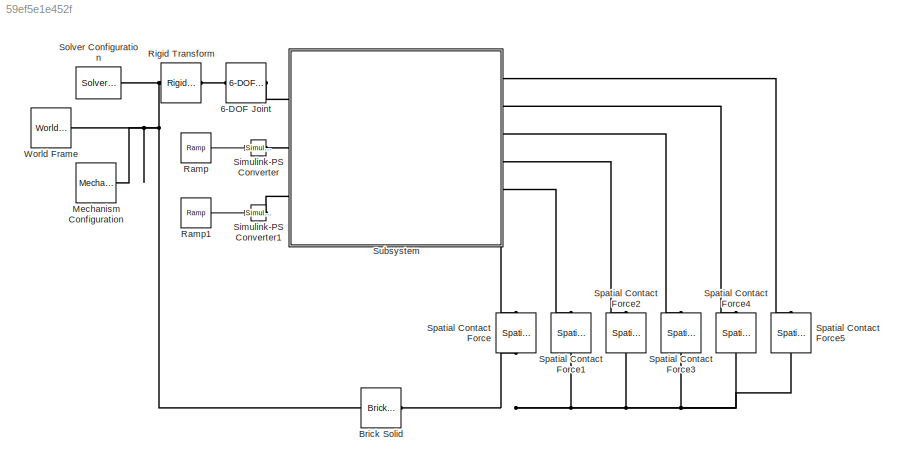
MODEL slx_59ef5e1e452f
KIND model
CONFIG AbsTol = auto
CONFIG EnableMultiTasking = off
CONFIG FixedStep = 0.001
CONFIG MaxStep = auto
CONFIG MinStep = auto
CONFIG RelTol = 1e-3
CONFIG SampleTimeConstraint = Unconstrained
CONFIG SolverName = FixedStepAuto
CONFIG StartTime = 0.0
CONFIG StopTime = 10
BLOCK [Reference] 6-DOF Joint  REF=sm_lib/Joints/6-DOF Joint
  Ports = [0, 0, 0, 0, 0, 1, 1]
  SourceBlock = sm_lib/Joints/6-DOF Joint
  SourceProductBaseCode = MS
  SourceType = 6-DOF Joint
BLOCK [Reference] Brick Solid  REF=sm_lib/Body Elements/Brick Solid
  NameLocation = top
  Ports = [0, 0, 0, 0, 0, 1, 1]
  SourceBlock = sm_lib/Body Elements/Brick Solid
  SourceProductBaseCode = MS
  SourceType = Brick Solid
BLOCK [Reference] Mechanism Configuration  REF=sm_lib/Utilities/Mechanism
Configuration
  Ports = [0, 0, 0, 0, 0, 0, 1]
  SourceBlock = sm_lib/Utilities/Mechanism\nConfiguration
  SourceProductBaseCode = MS
  SourceType = Mechanism\nConfiguration
BLOCK [Reference] Ramp  REF=simulink/Sources/Ramp
  Ports = [0, 1]
  SourceBlock = simulink/Sources/Ramp
  SourceProductBaseCode = SL
  SourceType = Ramp
BLOCK [Reference] Ramp1  REF=simulink/Sources/Ramp
  Ports = [0, 1]
  SourceBlock = simulink/Sources/Ramp
  SourceProductBaseCode = SL
  SourceType = Ramp
BLOCK [Reference] Rigid Transform  REF=sm_lib/Frames and
Transforms/Rigid
Transform
  NameLocation = top
  Ports = [0, 0, 0, 0, 0, 1, 1]
  SourceBlock = sm_lib/Frames and\nTransforms/Rigid\nTransform
  SourceProductBaseCode = MS
  SourceType = Rigid\nTransform
BLOCK [Reference] Simulink-PS Converter  REF=nesl_utility/Simulink-PS
Converter
  Ports = [1, 0, 0, 0, 0, 0, 1]
  SourceBlock = nesl_utility/Simulink-PS\nConverter
  SourceProductBaseCode = SS
  SourceType = Simulink-PS\nConverter
BLOCK [Reference] Simulink-PS Converter1  REF=nesl_utility/Simulink-PS
Converter
  Ports = [1, 0, 0, 0, 0, 0, 1]
  SourceBlock = nesl_utility/Simulink-PS\nConverter
  SourceProductBaseCode = SS
  SourceType = Simulink-PS\nConverter
BLOCK [Reference] Solver Configuration  REF=nesl_utility/Solver
Configuration
  Ports = [0, 0, 0, 0, 0, 0, 1]
  SourceBlock = nesl_utility/Solver\nConfiguration
  SourceProductBaseCode = SS
  SourceType = Solver\nConfiguration
BLOCK [Reference] Spatial Contact Force  REF=sm_lib/Forces and
Torques/Spatial
Contact Force
  NameLocation = right
  Ports = [0, 0, 0, 0, 0, 1, 1]
  SourceBlock = sm_lib/Forces and\nTorques/Spatial\nContact Force
  SourceProductBaseCode = MS
  SourceType = Spatial\nContact Force
BLOCK [Reference] Spatial Contact Force1  REF=sm_lib/Forces and
Torques/Spatial
Contact Force
  NameLocation = right
  Ports = [0, 0, 0, 0, 0, 1, 1]
  SourceBlock = sm_lib/Forces and\nTorques/Spatial\nContact Force
  SourceProductBaseCode = MS
  SourceType = Spatial\nContact Force
BLOCK [Reference] Spatial Contact Force2  REF=sm_lib/Forces and
Torques/Spatial
Contact Force
  NameLocation = right
  Ports = [0, 0, 0, 0, 0, 1, 1]
  SourceBlock = sm_lib/Forces and\nTorques/Spatial\nContact Force
  SourceProductBaseCode = MS
  SourceType = Spatial\nContact Force
BLOCK [Reference] Spatial Contact Force3  REF=sm_lib/Forces and
Torques/Spatial
Contact Force
  NameLocation = right
  Ports = [0, 0, 0, 0, 0, 1, 1]
  SourceBlock = sm_lib/Forces and\nTorques/Spatial\nContact Force
  SourceProductBaseCode = MS
  SourceType = Spatial\nContact Force
BLOCK [Reference] Spatial Contact Force4  REF=sm_lib/Forces and
Torques/Spatial
Contact Force
  NameLocation = right
  Ports = [0, 0, 0, 0, 0, 1, 1]
  SourceBlock = sm_lib/Forces and\nTorques/Spatial\nContact Force
  SourceProductBaseCode = MS
  SourceType = Spatial\nContact Force
BLOCK [Reference] Spatial Contact Force5  REF=sm_lib/Forces and
Torques/Spatial
Contact Force
  NameLocation = right
  Ports = [0, 0, 0, 0, 0, 1, 1]
  SourceBlock = sm_lib/Forces and\nTorques/Spatial\nContact Force
  SourceProductBaseCode = MS
  SourceType = Spatial\nContact Force
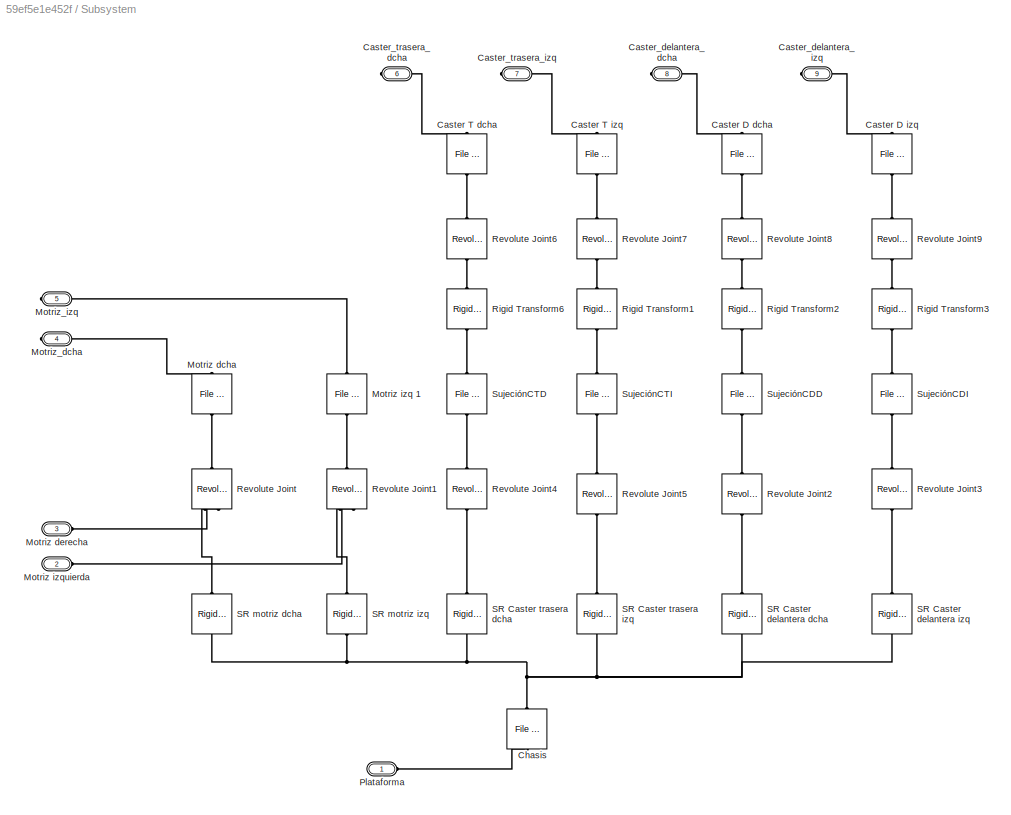
BLOCK [SubSystem] Subsystem
  Ports = [0, 0, 0, 0, 0, 3, 6]
  RequestExecContextInheritance = off
BLOCK [Reference] Subsystem/Caster D dcha  REF=sm_lib/Body Elements/File Solid
  NameLocation = right
  Ports = [0, 0, 0, 0, 0, 1, 1]
  SourceBlock = sm_lib/Body Elements/File Solid
  SourceProductBaseCode = MS
  SourceType = File Solid
BLOCK [Reference] Subsystem/Caster D izq  REF=sm_lib/Body Elements/File Solid
  NameLocation = right
  Ports = [0, 0, 0, 0, 0, 1, 1]
  SourceBlock = sm_lib/Body Elements/File Solid
  SourceProductBaseCode = MS
  SourceType = File Solid
BLOCK [Reference] Subsystem/Caster T dcha  REF=sm_lib/Body Elements/File Solid
  NameLocation = right
  Ports = [0, 0, 0, 0, 0, 1, 1]
  SourceBlock = sm_lib/Body Elements/File Solid
  SourceProductBaseCode = MS
  SourceType = File Solid
BLOCK [Reference] Subsystem/Caster T izq   REF=sm_lib/Body Elements/File Solid
  NameLocation = right
  Ports = [0, 0, 0, 0, 0, 1, 1]
  SourceBlock = sm_lib/Body Elements/File Solid
  SourceProductBaseCode = MS
  SourceType = File Solid
BLOCK [PMIOPort] Subsystem/Caster_delantera_dcha
  Port = 8
  Side = Right
BLOCK [PMIOPort] Subsystem/Caster_delantera_izq
  Port = 9
  Side = Right
BLOCK [PMIOPort] Subsystem/Caster_trasera_dcha
  Port = 6
  Side = Right
BLOCK [PMIOPort] Subsystem/Caster_trasera_izq
  Port = 7
  Side = Right
BLOCK [Reference] Subsystem/Chasis  REF=sm_lib/Body Elements/File Solid
  NameLocation = right
  Ports = [0, 0, 0, 0, 0, 1, 1]
  SourceBlock = sm_lib/Body Elements/File Solid
  SourceProductBaseCode = MS
  SourceType = File Solid
BLOCK [Reference] Subsystem/Motriz dcha   REF=sm_lib/Body Elements/File Solid
  NameLocation = left
  Ports = [0, 0, 0, 0, 0, 1, 1]
  SourceBlock = sm_lib/Body Elements/File Solid
  SourceProductBaseCode = MS
  SourceType = File Solid
BLOCK [PMIOPort] Subsystem/Motriz derecha
  Port = 3
  Side = Left
BLOCK [Reference] Subsystem/Motriz izq 1  REF=sm_lib/Body Elements/File Solid
  NameLocation = left
  Ports = [0, 0, 0, 0, 0, 1, 1]
  SourceBlock = sm_lib/Body Elements/File Solid
  SourceProductBaseCode = MS
  SourceType = File Solid
BLOCK [PMIOPort] Subsystem/Motriz izquierda
  Port = 2
  Side = Left
BLOCK [PMIOPort] Subsystem/Motriz_dcha
  Port = 4
  Side = Right
BLOCK [PMIOPort] Subsystem/Motriz_izq
  Port = 5
  Side = Right
BLOCK [PMIOPort] Subsystem/Plataforma
  Side = Left
BLOCK [Reference] Subsystem/Revolute Joint  REF=sm_lib/Joints/Revolute Joint
  NameLocation = right
  Ports = [0, 0, 0, 0, 0, 2, 1]
  SourceBlock = sm_lib/Joints/Revolute Joint
  SourceProductBaseCode = MS
  SourceType = Revolute Joint
BLOCK [Reference] Subsystem/Revolute Joint1  REF=sm_lib/Joints/Revolute Joint
  NameLocation = right
  Ports = [0, 0, 0, 0, 0, 2, 1]
  SourceBlock = sm_lib/Joints/Revolute Joint
  SourceProductBaseCode = MS
  SourceType = Revolute Joint
BLOCK [Reference] Subsystem/Revolute Joint2  REF=sm_lib/Joints/Revolute Joint
  NameLocation = right
  Ports = [0, 0, 0, 0, 0, 1, 1]
  SourceBlock = sm_lib/Joints/Revolute Joint
  SourceProductBaseCode = MS
  SourceType = Revolute Joint
BLOCK [Reference] Subsystem/Revolute Joint3  REF=sm_lib/Joints/Revolute Joint
  NameLocation = right
  Ports = [0, 0, 0, 0, 0, 1, 1]
  SourceBlock = sm_lib/Joints/Revolute Joint
  SourceProductBaseCode = MS
  SourceType = Revolute Joint
BLOCK [Reference] Subsystem/Revolute Joint4  REF=sm_lib/Joints/Revolute Joint
  NameLocation = right
  Ports = [0, 0, 0, 0, 0, 1, 1]
  SourceBlock = sm_lib/Joints/Revolute Joint
  SourceProductBaseCode = MS
  SourceType = Revolute Joint
BLOCK [Reference] Subsystem/Revolute Joint5  REF=sm_lib/Joints/Revolute Joint
  NameLocation = right
  Ports = [0, 0, 0, 0, 0, 1, 1]
  SourceBlock = sm_lib/Joints/Revolute Joint
  SourceProductBaseCode = MS
  SourceType = Revolute Joint
BLOCK [Reference] Subsystem/Revolute Joint6  REF=sm_lib/Joints/Revolute Joint
  NameLocation = right
  Ports = [0, 0, 0, 0, 0, 1, 1]
  SourceBlock = sm_lib/Joints/Revolute Joint
  SourceProductBaseCode = MS
  SourceType = Revolute Joint
BLOCK [Reference] Subsystem/Revolute Joint7  REF=sm_lib/Joints/Revolute Joint
  NameLocation = right
  Ports = [0, 0, 0, 0, 0, 1, 1]
  SourceBlock = sm_lib/Joints/Revolute Joint
  SourceProductBaseCode = MS
  SourceType = Revolute Joint
BLOCK [Reference] Subsystem/Revolute Joint8  REF=sm_lib/Joints/Revolute Joint
  NameLocation = right
  Ports = [0, 0, 0, 0, 0, 1, 1]
  SourceBlock = sm_lib/Joints/Revolute Joint
  SourceProductBaseCode = MS
  SourceType = Revolute Joint
BLOCK [Reference] Subsystem/Revolute Joint9  REF=sm_lib/Joints/Revolute Joint
  NameLocation = right
  Ports = [0, 0, 0, 0, 0, 1, 1]
  SourceBlock = sm_lib/Joints/Revolute Joint
  SourceProductBaseCode = MS
  SourceType = Revolute Joint
BLOCK [Reference] Subsystem/Rigid Transform1  REF=sm_lib/Frames and
Transforms/Rigid
Transform
  NameLocation = right
  Ports = [0, 0, 0, 0, 0, 1, 1]
  SourceBlock = sm_lib/Frames and\nTransforms/Rigid\nTransform
  SourceProductBaseCode = MS
  SourceType = Rigid\nTransform
BLOCK [Reference] Subsystem/Rigid Transform2  REF=sm_lib/Frames and
Transforms/Rigid
Transform
  NameLocation = right
  Ports = [0, 0, 0, 0, 0, 1, 1]
  SourceBlock = sm_lib/Frames and\nTransforms/Rigid\nTransform
  SourceProductBaseCode = MS
  SourceType = Rigid\nTransform
BLOCK [Reference] Subsystem/Rigid Transform3  REF=sm_lib/Frames and
Transforms/Rigid
Transform
  NameLocation = right
  Ports = [0, 0, 0, 0, 0, 1, 1]
  SourceBlock = sm_lib/Frames and\nTransforms/Rigid\nTransform
  SourceProductBaseCode = MS
  SourceType = Rigid\nTransform
BLOCK [Reference] Subsystem/Rigid Transform6  REF=sm_lib/Frames and
Transforms/Rigid
Transform
  NameLocation = right
  Ports = [0, 0, 0, 0, 0, 1, 1]
  SourceBlock = sm_lib/Frames and\nTransforms/Rigid\nTransform
  SourceProductBaseCode = MS
  SourceType = Rigid\nTransform
BLOCK [Reference] Subsystem/SR Caster delantera dcha  REF=sm_lib/Frames and
Transforms/Rigid
Transform
  NameLocation = right
  Ports = [0, 0, 0, 0, 0, 1, 1]
  SourceBlock = sm_lib/Frames and\nTransforms/Rigid\nTransform
  SourceProductBaseCode = MS
  SourceType = Rigid\nTransform
BLOCK [Reference] Subsystem/SR Caster delantera izq  REF=sm_lib/Frames and
Transforms/Rigid
Transform
  NameLocation = right
  Ports = [0, 0, 0, 0, 0, 1, 1]
  SourceBlock = sm_lib/Frames and\nTransforms/Rigid\nTransform
  SourceProductBaseCode = MS
  SourceType = Rigid\nTransform
BLOCK [Reference] Subsystem/SR Caster trasera dcha  REF=sm_lib/Frames and
Transforms/Rigid
Transform
  NameLocation = right
  Ports = [0, 0, 0, 0, 0, 1, 1]
  SourceBlock = sm_lib/Frames and\nTransforms/Rigid\nTransform
  SourceProductBaseCode = MS
  SourceType = Rigid\nTransform
BLOCK [Reference] Subsystem/SR Caster trasera izq  REF=sm_lib/Frames and
Transforms/Rigid
Transform
  NameLocation = right
  Ports = [0, 0, 0, 0, 0, 1, 1]
  SourceBlock = sm_lib/Frames and\nTransforms/Rigid\nTransform
  SourceProductBaseCode = MS
  SourceType = Rigid\nTransform
BLOCK [Reference] Subsystem/SR motriz dcha  REF=sm_lib/Frames and
Transforms/Rigid
Transform
  NameLocation = right
  Ports = [0, 0, 0, 0, 0, 1, 1]
  SourceBlock = sm_lib/Frames and\nTransforms/Rigid\nTransform
  SourceProductBaseCode = MS
  SourceType = Rigid\nTransform
BLOCK [Reference] Subsystem/SR motriz izq  REF=sm_lib/Frames and
Transforms/Rigid
Transform
  NameLocation = right
  Ports = [0, 0, 0, 0, 0, 1, 1]
  SourceBlock = sm_lib/Frames and\nTransforms/Rigid\nTransform
  SourceProductBaseCode = MS
  SourceType = Rigid\nTransform
BLOCK [Reference] Subsystem/SujeciónCDD  REF=sm_lib/Body Elements/File Solid
  NameLocation = left
  Ports = [0, 0, 0, 0, 0, 1, 1]
  SourceBlock = sm_lib/Body Elements/File Solid
  SourceProductBaseCode = MS
  SourceType = File Solid
BLOCK [Reference] Subsystem/SujeciónCDI  REF=sm_lib/Body Elements/File Solid
  NameLocation = left
  Ports = [0, 0, 0, 0, 0, 1, 1]
  SourceBlock = sm_lib/Body Elements/File Solid
  SourceProductBaseCode = MS
  SourceType = File Solid
BLOCK [Reference] Subsystem/SujeciónCTD  REF=sm_lib/Body Elements/File Solid
  NameLocation = left
  Ports = [0, 0, 0, 0, 0, 1, 1]
  SourceBlock = sm_lib/Body Elements/File Solid
  SourceProductBaseCode = MS
  SourceType = File Solid
BLOCK [Reference] Subsystem/SujeciónCTI  REF=sm_lib/Body Elements/File Solid
  NameLocation = left
  Ports = [0, 0, 0, 0, 0, 1, 1]
  SourceBlock = sm_lib/Body Elements/File Solid
  SourceProductBaseCode = MS
  SourceType = File Solid
BLOCK [Reference] World Frame  REF=sm_lib/Frames and
Transforms/World Frame
  Ports = [0, 0, 0, 0, 0, 0, 1]
  SourceBlock = sm_lib/Frames and\nTransforms/World Frame
  SourceProductBaseCode = MS
  SourceType = World Frame
LINE Ramp1:1 -> Simulink-PS Converter1:1
LINE Ramp:1 -> Simulink-PS Converter:1
PLINE 6-DOF Joint:LConn1 -- Rigid Transform:RConn1
PLINE 6-DOF Joint:RConn1 -- Subsystem:LConn1
PNET net1: Brick Solid:LConn1 -- Spatial Contact Force1:LConn1 -- Spatial Contact Force2:LConn1 -- Spatial Contact Force3:LConn1 -- Spatial Contact Force4:LConn1 -- Spatial Contact Force5:LConn1 -- Spatial Contact Force:LConn1
PNET net2: Brick Solid:RConn1 -- Mechanism Configuration:RConn1 -- Rigid Transform:LConn1 -- Solver Configuration:RConn1 -- World Frame:RConn1
PLINE Simulink-PS Converter1:RConn1 -- Subsystem:LConn3
PLINE Simulink-PS Converter:RConn1 -- Subsystem:LConn2
PLINE Spatial Contact Force1:RConn1 -- Subsystem:RConn5
PLINE Spatial Contact Force2:RConn1 -- Subsystem:RConn4
PLINE Spatial Contact Force3:RConn1 -- Subsystem:RConn3
PLINE Spatial Contact Force4:RConn1 -- Subsystem:RConn2
PLINE Spatial Contact Force5:RConn1 -- Subsystem:RConn1
PLINE Spatial Contact Force:RConn1 -- Subsystem:RConn6
PLINE Subsystem/Caster D dcha:LConn1 -- Subsystem/Revolute Joint8:RConn1
PLINE Subsystem/Caster D dcha:RConn1 -- Subsystem/Caster_delantera_dcha:RConn1
PLINE Subsystem/Caster D izq:LConn1 -- Subsystem/Revolute Joint9:RConn1
PLINE Subsystem/Caster D izq:RConn1 -- Subsystem/Caster_delantera_izq:RConn1
PLINE Subsystem/Caster T dcha:LConn1 -- Subsystem/Revolute Joint6:RConn1
PLINE Subsystem/Caster T dcha:RConn1 -- Subsystem/Caster_trasera_dcha:RConn1
PLINE Subsystem/Caster T izq :LConn1 -- Subsystem/Revolute Joint7:RConn1
PLINE Subsystem/Caster T izq :RConn1 -- Subsystem/Caster_trasera_izq:RConn1
PLINE Subsystem/Chasis:LConn1 -- Subsystem/Plataforma:RConn1
PNET net3: Subsystem/Chasis:RConn1 -- Subsystem/SR Caster delantera dcha:LConn1 -- Subsystem/SR Caster delantera izq:LConn1 -- Subsystem/SR Caster trasera dcha:LConn1 -- Subsystem/SR Caster trasera izq:LConn1 -- Subsystem/SR motriz dcha:LConn1 -- Subsystem/SR motriz izq:LConn1
PLINE Subsystem/Motriz dcha :LConn1 -- Subsystem/Motriz_dcha:RConn1
PLINE Subsystem/Motriz dcha :RConn1 -- Subsystem/Revolute Joint:RConn1
PLINE Subsystem/Motriz derecha:RConn1 -- Subsystem/Revolute Joint:LConn2
PLINE Subsystem/Motriz izq 1:LConn1 -- Subsystem/Motriz_izq:RConn1
PLINE Subsystem/Motriz izq 1:RConn1 -- Subsystem/Revolute Joint1:RConn1
PLINE Subsystem/Motriz izquierda:RConn1 -- Subsystem/Revolute Joint1:LConn2
PLINE Subsystem/Revolute Joint1:LConn1 -- Subsystem/SR motriz izq:RConn1
PLINE Subsystem/Revolute Joint2:LConn1 -- Subsystem/SR Caster delantera dcha:RConn1
PLINE Subsystem/Revolute Joint2:RConn1 -- Subsystem/SujeciónCDD:RConn1
PLINE Subsystem/Revolute Joint3:LConn1 -- Subsystem/SR Caster delantera izq:RConn1
PLINE Subsystem/Revolute Joint3:RConn1 -- Subsystem/SujeciónCDI:RConn1
PLINE Subsystem/Revolute Joint4:LConn1 -- Subsystem/SR Caster trasera dcha:RConn1
PLINE Subsystem/Revolute Joint4:RConn1 -- Subsystem/SujeciónCTD:RConn1
PLINE Subsystem/Revolute Joint5:LConn1 -- Subsystem/SR Caster trasera izq:RConn1
PLINE Subsystem/Revolute Joint5:RConn1 -- Subsystem/SujeciónCTI:RConn1
PLINE Subsystem/Revolute Joint6:LConn1 -- Subsystem/Rigid Transform6:RConn1
PLINE Subsystem/Revolute Joint7:LConn1 -- Subsystem/Rigid Transform1:RConn1
PLINE Subsystem/Revolute Joint8:LConn1 -- Subsystem/Rigid Transform2:RConn1
PLINE Subsystem/Revolute Joint9:LConn1 -- Subsystem/Rigid Transform3:RConn1
PLINE Subsystem/Revolute Joint:LConn1 -- Subsystem/SR motriz dcha:RConn1
PLINE Subsystem/Rigid Transform1:LConn1 -- Subsystem/SujeciónCTI:LConn1
PLINE Subsystem/Rigid Transform2:LConn1 -- Subsystem/SujeciónCDD:LConn1
PLINE Subsystem/Rigid Transform3:LConn1 -- Subsystem/SujeciónCDI:LConn1
PLINE Subsystem/Rigid Transform6:LConn1 -- Subsystem/SujeciónCTD:LConn1
note: PNET lines group multi-terminal physical nets as a canonical sorted terminal list (undirected conserving connections); 2-terminal nets keep the pairwise PLINE form
